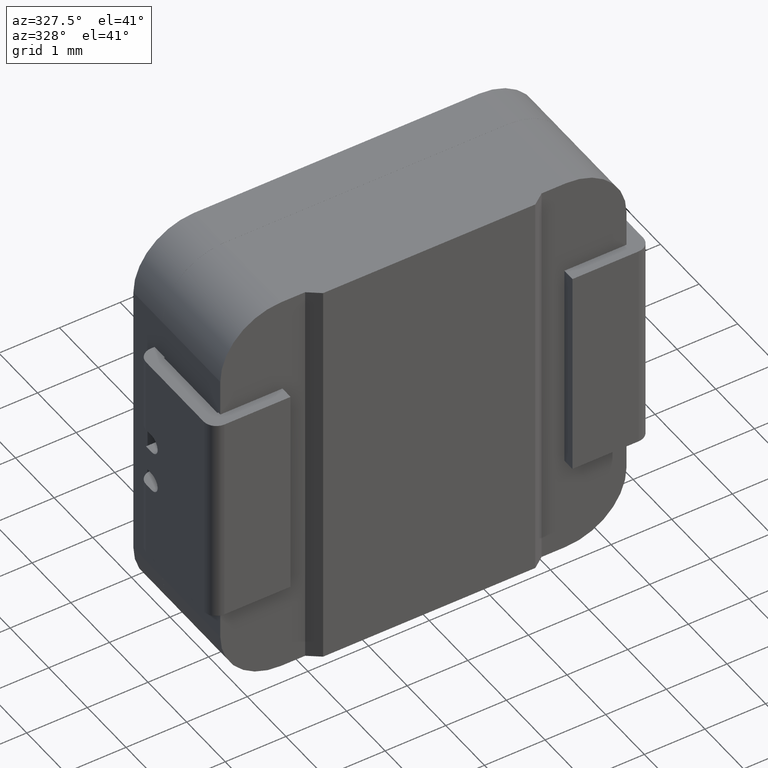
[diagram: clean part render]
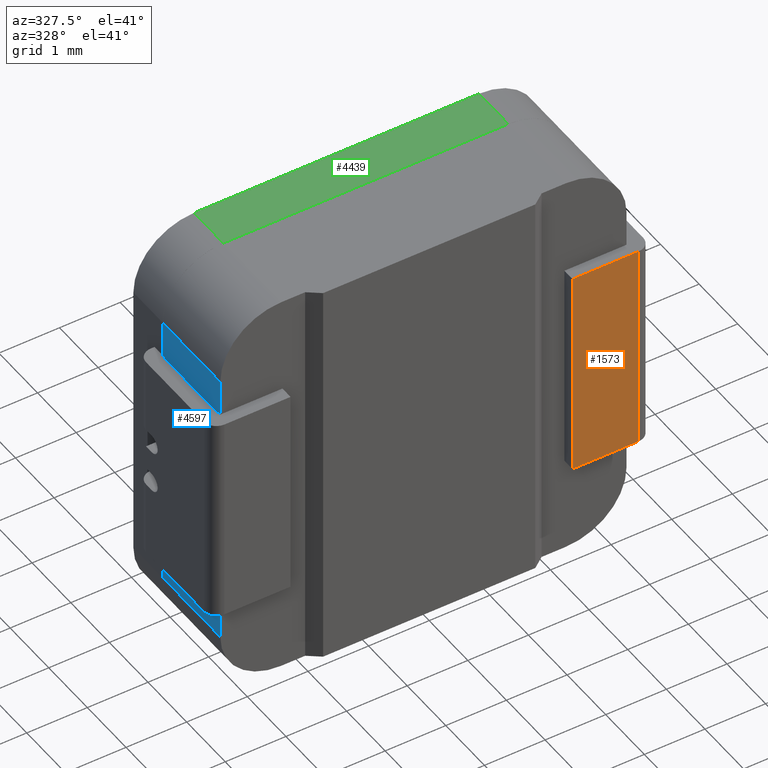
[diagram: same view with three faces highlighted in distinct colors, each labeled with its STEP entity id]
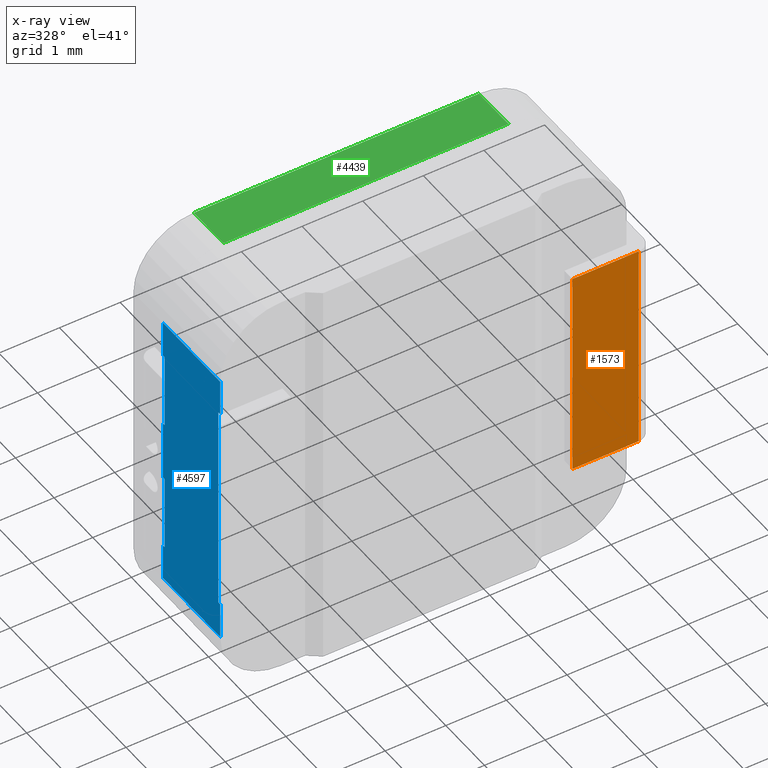
[diagram: x-ray of the same camera — body ghosted, the three highlighted faces saturated]
A machine part, auxiliary view with three faces highlighted in distinct colors.
The next image is the same camera in x-ray (body ghosted, the three faces saturated) — at least one of them is partly hidden behind the body in this view.
Their STEP definitions:

[orange] entity #1573 — the highlighted planar face has unit normal (0, -1, 0).
#205 = EDGE_CURVE ( 'NONE', #3668, #892, #1800, .T. ) ;
#381 = AXIS2_PLACEMENT_3D ( 'NONE', #4107, #1041, #2558 ) ;
#568 = PLANE ( 'NONE',  #381 ) ;
#762 = VECTOR ( 'NONE', #6753, 1000.000000000000000 ) ;
#892 = VERTEX_POINT ( 'NONE', #4506 ) ;
#1009 = CARTESIAN_POINT ( 'NONE',  ( 3.625000000000001776, -0.06000000000000029615, 1.750000000000000000 ) ) ;
#1041 = DIRECTION ( 'NONE',  ( 2.293504595642413567E-16, -1.000000000000000000, 0.0000000000000000000 ) ) ;
#1153 = VECTOR ( 'NONE', #1237, 1000.000000000000000 ) ;
#1237 = DIRECTION ( 'NONE',  ( -0.0000000000000000000, -0.0000000000000000000, 1.000000000000000000 ) ) ;
#1573 = ADVANCED_FACE ( 'NONE', ( #3455 ), #568, .T. ) ;
#1711 = VECTOR ( 'NONE', #4633, 1000.000000000000000 ) ;
#1800 = LINE ( 'NONE', #4420, #1153 ) ;
#2169 = ORIENTED_EDGE ( 'NONE', *, *, #205, .T. ) ;
#2204 = EDGE_LOOP ( 'NONE', ( #3092, #2169, #3933, #4871 ) ) ;
#2558 = DIRECTION ( 'NONE',  ( 1.000000000000000000, 2.293504595642413567E-16, 0.0000000000000000000 ) ) ;
#2808 = CARTESIAN_POINT ( 'NONE',  ( 3.415000000000001812, -0.06000000000000033779, -1.750000000000000000 ) ) ;
#2826 = VERTEX_POINT ( 'NONE', #5408 ) ;
#3092 = ORIENTED_EDGE ( 'NONE', *, *, #4864, .F. ) ;
#3124 = LINE ( 'NONE', #6203, #3691 ) ;
#3455 = FACE_OUTER_BOUND ( 'NONE', #2204, .T. ) ;
#3533 = LINE ( 'NONE', #3605, #762 ) ;
#3605 = CARTESIAN_POINT ( 'NONE',  ( 2.325000000000001954, -0.06000000000000059452, 1.750000000000000000 ) ) ;
#3668 = VERTEX_POINT ( 'NONE', #2808 ) ;
#3691 = VECTOR ( 'NONE', #4648, 1000.000000000000000 ) ;
#3933 = ORIENTED_EDGE ( 'NONE', *, *, #5157, .T. ) ;
#4107 = CARTESIAN_POINT ( 'NONE',  ( 3.625000000000001776, -0.06000000000000029615, 1.750000000000000000 ) ) ;
#4420 = CARTESIAN_POINT ( 'NONE',  ( 3.415000000000001812, -0.06000000000000033779, 1.750000000000000000 ) ) ;
#4506 = CARTESIAN_POINT ( 'NONE',  ( 3.415000000000001812, -0.06000000000000033779, 1.750000000000000000 ) ) ;
#4633 = DIRECTION ( 'NONE',  ( -1.000000000000000000, -2.293504595642413567E-16, 0.0000000000000000000 ) ) ;
#4648 = DIRECTION ( 'NONE',  ( -1.000000000000000000, -2.293504595642413567E-16, 0.0000000000000000000 ) ) ;
#4772 = EDGE_CURVE ( 'NONE', #6376, #2826, #3533, .T. ) ;
#4864 = EDGE_CURVE ( 'NONE', #3668, #2826, #3124, .T. ) ;
#4871 = ORIENTED_EDGE ( 'NONE', *, *, #4772, .T. ) ;
#5157 = EDGE_CURVE ( 'NONE', #892, #6376, #5881, .T. ) ;
#5408 = CARTESIAN_POINT ( 'NONE',  ( 2.325000000000001954, -0.06000000000000059452, -1.750000000000000000 ) ) ;
#5881 = LINE ( 'NONE', #1009, #1711 ) ;
#6203 = CARTESIAN_POINT ( 'NONE',  ( 3.625000000000001776, -0.06000000000000029615, -1.750000000000000000 ) ) ;
#6376 = VERTEX_POINT ( 'NONE', #6621 ) ;
#6621 = CARTESIAN_POINT ( 'NONE',  ( 2.325000000000001954, -0.06000000000000059452, 1.750000000000000000 ) ) ;
#6753 = DIRECTION ( 'NONE',  ( -0.0000000000000000000, -0.0000000000000000000, -1.000000000000000000 ) ) ;

[blue] entity #4597 — the highlighted planar face has unit normal (1, 0, 0).
#13 = CARTESIAN_POINT ( 'NONE',  ( -3.350000000000000089, 2.399999999999999911, -1.750000000000000000 ) ) ;
#145 = CARTESIAN_POINT ( 'NONE',  ( -3.350000000000000089, 1.589999999999999858, -3.349999999999999645 ) ) ;
#149 = VECTOR ( 'NONE', #4737, 1000.000000000000000 ) ;
#248 = DIRECTION ( 'NONE',  ( 1.000000000000000000, 0.0000000000000000000, 0.0000000000000000000 ) ) ;
#251 = VERTEX_POINT ( 'NONE', #3379 ) ;
#413 = VERTEX_POINT ( 'NONE', #2626 ) ;
#489 = EDGE_CURVE ( 'NONE', #3295, #3349, #5089, .T. ) ;
#494 = CARTESIAN_POINT ( 'NONE',  ( -3.350000000000000089, 0.1499999999999999944, -3.350000000000001421 ) ) ;
#497 = CARTESIAN_POINT ( 'NONE',  ( -3.350000000000000089, 0.1999999999999996503, -1.750000000000000000 ) ) ;
#587 = DIRECTION ( 'NONE',  ( 0.0000000000000000000, 0.0000000000000000000, 1.000000000000000000 ) ) ;
#755 = ORIENTED_EDGE ( 'NONE', *, *, #3972, .T. ) ;
#807 = DIRECTION ( 'NONE',  ( 0.0000000000000000000, -1.000000000000000000, -0.0000000000000000000 ) ) ;
#897 = VERTEX_POINT ( 'NONE', #4481 ) ;
#923 = ORIENTED_EDGE ( 'NONE', *, *, #3638, .T. ) ;
#987 = LINE ( 'NONE', #5781, #1389 ) ;
#993 = ORIENTED_EDGE ( 'NONE', *, *, #1533, .F. ) ;
#997 = DIRECTION ( 'NONE',  ( 0.0000000000000000000, 0.0000000000000000000, -1.000000000000000000 ) ) ;
#1002 = ORIENTED_EDGE ( 'NONE', *, *, #2024, .F. ) ;
#1091 = CARTESIAN_POINT ( 'NONE',  ( -3.350000000000000089, 0.1999999999999996503, -3.349999999999999645 ) ) ;
#1138 = CARTESIAN_POINT ( 'NONE',  ( -3.350000000000000089, 0.1499999999999999944, -3.350000000000001421 ) ) ;
#1166 = LINE ( 'NONE', #6008, #3616 ) ;
#1187 = ORIENTED_EDGE ( 'NONE', *, *, #489, .T. ) ;
#1254 = VERTEX_POINT ( 'NONE', #3273 ) ;
#1299 = ORIENTED_EDGE ( 'NONE', *, *, #5424, .F. ) ;
#1389 = VECTOR ( 'NONE', #5205, 1000.000000000000000 ) ;
#1423 = ORIENTED_EDGE ( 'NONE', *, *, #3394, .T. ) ;
#1449 = VERTEX_POINT ( 'NONE', #1947 ) ;
#1470 = CARTESIAN_POINT ( 'NONE',  ( -3.350000000000000089, 2.399999999999999911, 1.749999999999999778 ) ) ;
#1527 = CARTESIAN_POINT ( 'NONE',  ( -3.350000000000000089, 1.639999999999999902, -3.349999999999999645 ) ) ;
#1533 = EDGE_CURVE ( 'NONE', #2645, #5557, #2493, .T. ) ;
#1731 = VERTEX_POINT ( 'NONE', #497 ) ;
#1746 = EDGE_CURVE ( 'NONE', #251, #1731, #6689, .T. ) ;
#1774 = VECTOR ( 'NONE', #6310, 1000.000000000000000 ) ;
#1777 = DIRECTION ( 'NONE',  ( 0.0000000000000000000, 0.0000000000000000000, 1.000000000000000000 ) ) ;
#1806 = VECTOR ( 'NONE', #3284, 1000.000000000000000 ) ;
#1836 = EDGE_CURVE ( 'NONE', #3453, #251, #2774, .T. ) ;
#1865 = CARTESIAN_POINT ( 'NONE',  ( -3.350000000000000089, 1.639999999999999902, 0.5000000000000000000 ) ) ;
#1924 = DIRECTION ( 'NONE',  ( 0.0000000000000000000, -0.0000000000000000000, 1.000000000000000000 ) ) ;
#1947 = CARTESIAN_POINT ( 'NONE',  ( -3.350000000000000089, 1.639999999999999902, -2.349999999999999645 ) ) ;
#2024 = EDGE_CURVE ( 'NONE', #413, #3349, #3493, .T. ) ;
#2138 = VECTOR ( 'NONE', #807, 1000.000000000000000 ) ;
#2142 = LINE ( 'NONE', #494, #2963 ) ;
#2190 = EDGE_CURVE ( 'NONE', #1254, #3875, #3654, .T. ) ;
#2219 = LINE ( 'NONE', #4005, #2792 ) ;
#2493 = LINE ( 'NONE', #1470, #5085 ) ;
#2517 = DIRECTION ( 'NONE',  ( -0.0000000000000000000, 1.000000000000000000, 0.0000000000000000000 ) ) ;
#2626 = CARTESIAN_POINT ( 'NONE',  ( -3.350000000000000089, 1.639999999999999902, -0.5000000000000000000 ) ) ;
#2645 = VERTEX_POINT ( 'NONE', #5296 ) ;
#2681 = ORIENTED_EDGE ( 'NONE', *, *, #3811, .T. ) ;
#2684 = VECTOR ( 'NONE', #3928, 1000.000000000000000 ) ;
#2729 = ORIENTED_EDGE ( 'NONE', *, *, #3575, .T. ) ;
#2773 = EDGE_CURVE ( 'NONE', #1254, #6768, #3952, .T. ) ;
#2774 = LINE ( 'NONE', #3717, #149 ) ;
#2792 = VECTOR ( 'NONE', #2517, 1000.000000000000000 ) ;
#2822 = CARTESIAN_POINT ( 'NONE',  ( -3.350000000000000089, 1.639999999999999902, 2.349999999999999645 ) ) ;
#2846 = LINE ( 'NONE', #3708, #4056 ) ;
#2963 = VECTOR ( 'NONE', #4126, 1000.000000000000000 ) ;
#3051 = CARTESIAN_POINT ( 'NONE',  ( -3.350000000000000089, 1.589999999999999858, -0.5000000000000000000 ) ) ;
#3273 = CARTESIAN_POINT ( 'NONE',  ( -3.350000000000000089, 1.589999999999999858, -1.750000000000000000 ) ) ;
#3284 = DIRECTION ( 'NONE',  ( -0.0000000000000000000, -0.0000000000000000000, 1.000000000000000000 ) ) ;
#3291 = ORIENTED_EDGE ( 'NONE', *, *, #1746, .F. ) ;
#3295 = VERTEX_POINT ( 'NONE', #4808 ) ;
#3320 = CARTESIAN_POINT ( 'NONE',  ( -3.350000000000000089, 2.399999999999999911, -2.349999999999999645 ) ) ;
#3326 = CARTESIAN_POINT ( 'NONE',  ( -3.350000000000000089, 2.399999999999999911, 0.5000000000000000000 ) ) ;
#3349 = VERTEX_POINT ( 'NONE', #1865 ) ;
#3379 = CARTESIAN_POINT ( 'NONE',  ( -3.350000000000000089, 0.1999999999999996780, 1.750000000000000000 ) ) ;
#3394 = EDGE_CURVE ( 'NONE', #413, #6768, #1166, .T. ) ;
#3428 = CARTESIAN_POINT ( 'NONE',  ( -3.350000000000000089, 1.639999999999999902, -3.349999999999999645 ) ) ;
#3453 = VERTEX_POINT ( 'NONE', #3998 ) ;
#3493 = LINE ( 'NONE', #3428, #2684 ) ;
#3504 = EDGE_CURVE ( 'NONE', #897, #4624, #2142, .T. ) ;
#3575 = EDGE_CURVE ( 'NONE', #3453, #5499, #4807, .T. ) ;
#3593 = EDGE_LOOP ( 'NONE', ( #5142, #2729, #923, #3606, #993, #4331, #1187, #1002, #1423, #4863, #5573, #1299, #2681, #4579, #755, #3291 ) ) ;
#3606 = ORIENTED_EDGE ( 'NONE', *, *, #5161, .F. ) ;
#3616 = VECTOR ( 'NONE', #6524, 1000.000000000000000 ) ;
#3638 = EDGE_CURVE ( 'NONE', #5499, #3864, #987, .T. ) ;
#3654 = LINE ( 'NONE', #13, #1774 ) ;
#3667 = VECTOR ( 'NONE', #1924, 1000.000000000000000 ) ;
#3708 = CARTESIAN_POINT ( 'NONE',  ( -3.350000000000000089, 1.589999999999999858, -3.349999999999999645 ) ) ;
#3717 = CARTESIAN_POINT ( 'NONE',  ( -3.350000000000000089, 2.399999999999999911, 1.749999999999999778 ) ) ;
#3811 = EDGE_CURVE ( 'NONE', #1449, #897, #5307, .T. ) ;
#3864 = VERTEX_POINT ( 'NONE', #2822 ) ;
#3875 = VERTEX_POINT ( 'NONE', #4433 ) ;
#3928 = DIRECTION ( 'NONE',  ( 0.0000000000000000000, -0.0000000000000000000, 1.000000000000000000 ) ) ;
#3937 = CARTESIAN_POINT ( 'NONE',  ( -3.350000000000000089, 2.399999999999999911, -3.349999999999999645 ) ) ;
#3952 = LINE ( 'NONE', #145, #6348 ) ;
#3972 = EDGE_CURVE ( 'NONE', #4624, #1731, #2219, .T. ) ;
#3998 = CARTESIAN_POINT ( 'NONE',  ( -3.350000000000000089, 0.1499999999999999667, 1.749999999999999778 ) ) ;
#4005 = CARTESIAN_POINT ( 'NONE',  ( -3.350000000000000089, 2.399999999999999911, -1.750000000000000000 ) ) ;
#4056 = VECTOR ( 'NONE', #587, 1000.000000000000000 ) ;
#4126 = DIRECTION ( 'NONE',  ( -0.0000000000000000000, -0.0000000000000000000, 1.000000000000000000 ) ) ;
#4331 = ORIENTED_EDGE ( 'NONE', *, *, #4390, .F. ) ;
#4384 = CARTESIAN_POINT ( 'NONE',  ( -3.350000000000000089, 0.1499999999999999667, -1.750000000000000000 ) ) ;
#4390 = EDGE_CURVE ( 'NONE', #3295, #2645, #2846, .T. ) ;
#4416 = FACE_OUTER_BOUND ( 'NONE', #3593, .T. ) ;
#4433 = CARTESIAN_POINT ( 'NONE',  ( -3.350000000000000089, 1.639999999999999902, -1.750000000000000000 ) ) ;
#4481 = CARTESIAN_POINT ( 'NONE',  ( -3.350000000000000089, 0.1499999999999999944, -2.350000000000000089 ) ) ;
#4508 = AXIS2_PLACEMENT_3D ( 'NONE', #3937, #248, #4939 ) ;
#4579 = ORIENTED_EDGE ( 'NONE', *, *, #3504, .T. ) ;
#4597 = ADVANCED_FACE ( 'NONE', ( #4416 ), #5452, .F. ) ;
#4624 = VERTEX_POINT ( 'NONE', #4384 ) ;
#4737 = DIRECTION ( 'NONE',  ( -0.0000000000000000000, 1.000000000000000000, 0.0000000000000000000 ) ) ;
#4750 = VECTOR ( 'NONE', #4800, 1000.000000000000000 ) ;
#4800 = DIRECTION ( 'NONE',  ( -0.0000000000000000000, 1.000000000000000000, 0.0000000000000000000 ) ) ;
#4807 = LINE ( 'NONE', #1138, #1806 ) ;
#4808 = CARTESIAN_POINT ( 'NONE',  ( -3.350000000000000089, 1.589999999999999858, 0.5000000000000000000 ) ) ;
#4863 = ORIENTED_EDGE ( 'NONE', *, *, #2773, .F. ) ;
#4939 = DIRECTION ( 'NONE',  ( 0.0000000000000000000, 0.0000000000000000000, -1.000000000000000000 ) ) ;
#4999 = CARTESIAN_POINT ( 'NONE',  ( -3.350000000000000089, 0.1499999999999999944, 2.349999999999997868 ) ) ;
#5085 = VECTOR ( 'NONE', #5648, 1000.000000000000000 ) ;
#5089 = LINE ( 'NONE', #3326, #4750 ) ;
#5142 = ORIENTED_EDGE ( 'NONE', *, *, #1836, .F. ) ;
#5161 = EDGE_CURVE ( 'NONE', #5557, #3864, #5713, .T. ) ;
#5205 = DIRECTION ( 'NONE',  ( -0.0000000000000000000, 1.000000000000000000, -0.0000000000000000000 ) ) ;
#5296 = CARTESIAN_POINT ( 'NONE',  ( -3.350000000000000089, 1.589999999999999858, 1.750000000000000000 ) ) ;
#5307 = LINE ( 'NONE', #3320, #2138 ) ;
#5424 = EDGE_CURVE ( 'NONE', #1449, #3875, #5704, .T. ) ;
#5452 = PLANE ( 'NONE',  #4508 ) ;
#5499 = VERTEX_POINT ( 'NONE', #4999 ) ;
#5557 = VERTEX_POINT ( 'NONE', #6592 ) ;
#5573 = ORIENTED_EDGE ( 'NONE', *, *, #2190, .T. ) ;
#5648 = DIRECTION ( 'NONE',  ( -0.0000000000000000000, 1.000000000000000000, 0.0000000000000000000 ) ) ;
#5701 = DIRECTION ( 'NONE',  ( 0.0000000000000000000, -0.0000000000000000000, 1.000000000000000000 ) ) ;
#5704 = LINE ( 'NONE', #6014, #3667 ) ;
#5713 = LINE ( 'NONE', #1527, #6379 ) ;
#5781 = CARTESIAN_POINT ( 'NONE',  ( -3.350000000000000089, 2.399999999999999911, 2.349999999999999645 ) ) ;
#6008 = CARTESIAN_POINT ( 'NONE',  ( -3.350000000000000089, 2.399999999999999911, -0.5000000000000000000 ) ) ;
#6014 = CARTESIAN_POINT ( 'NONE',  ( -3.350000000000000089, 1.639999999999999902, -3.349999999999999645 ) ) ;
#6310 = DIRECTION ( 'NONE',  ( -0.0000000000000000000, 1.000000000000000000, 0.0000000000000000000 ) ) ;
#6348 = VECTOR ( 'NONE', #1777, 1000.000000000000000 ) ;
#6379 = VECTOR ( 'NONE', #5701, 1000.000000000000000 ) ;
#6524 = DIRECTION ( 'NONE',  ( 0.0000000000000000000, -1.000000000000000000, 0.0000000000000000000 ) ) ;
#6525 = VECTOR ( 'NONE', #997, 1000.000000000000000 ) ;
#6592 = CARTESIAN_POINT ( 'NONE',  ( -3.350000000000000089, 1.639999999999999902, 1.749999999999999778 ) ) ;
#6689 = LINE ( 'NONE', #1091, #6525 ) ;
#6768 = VERTEX_POINT ( 'NONE', #3051 ) ;

[green] entity #4439 — the highlighted planar face has unit normal (-0, 0, -1).
#135 = ORIENTED_EDGE ( 'NONE', *, *, #2728, .T. ) ;
#694 = CARTESIAN_POINT ( 'NONE',  ( -2.350000000000000089, 1.640999999999999792, 3.349999999999999645 ) ) ;
#706 = ORIENTED_EDGE ( 'NONE', *, *, #2285, .F. ) ;
#724 = DIRECTION ( 'NONE',  ( -1.294569758191646169E-16, 0.0000000000000000000, -1.000000000000000000 ) ) ;
#1038 = VECTOR ( 'NONE', #3445, 1000.000000000000000 ) ;
#1160 = CARTESIAN_POINT ( 'NONE',  ( -3.350000000000000089, 1.640999999999999792, 3.349999999999999645 ) ) ;
#1687 = PLANE ( 'NONE',  #4992 ) ;
#1799 = DIRECTION ( 'NONE',  ( 0.0000000000000000000, -1.000000000000000000, 0.0000000000000000000 ) ) ;
#1912 = VECTOR ( 'NONE', #5334, 1000.000000000000000 ) ;
#1955 = LINE ( 'NONE', #5938, #1038 ) ;
#2158 = DIRECTION ( 'NONE',  ( -0.0000000000000000000, 1.000000000000000000, -0.0000000000000000000 ) ) ;
#2214 = VERTEX_POINT ( 'NONE', #694 ) ;
#2285 = EDGE_CURVE ( 'NONE', #2530, #4613, #1955, .T. ) ;
#2357 = CARTESIAN_POINT ( 'NONE',  ( 2.350000000000003642, 1.640999999999999792, 3.349999999999998757 ) ) ;
#2530 = VERTEX_POINT ( 'NONE', #3652 ) ;
#2566 = FACE_OUTER_BOUND ( 'NONE', #6772, .T. ) ;
#2618 = ORIENTED_EDGE ( 'NONE', *, *, #3159, .T. ) ;
#2728 = EDGE_CURVE ( 'NONE', #3298, #4613, #5846, .T. ) ;
#2806 = DIRECTION ( 'NONE',  ( -1.000000000000000000, 0.0000000000000000000, 1.294569758191646169E-16 ) ) ;
#2868 = LINE ( 'NONE', #5969, #5957 ) ;
#3016 = ORIENTED_EDGE ( 'NONE', *, *, #5325, .T. ) ;
#3159 = EDGE_CURVE ( 'NONE', #2214, #3298, #5910, .T. ) ;
#3298 = VERTEX_POINT ( 'NONE', #2357 ) ;
#3304 = CARTESIAN_POINT ( 'NONE',  ( -3.350000000000000089, 2.399999999999999911, 3.349999999999999645 ) ) ;
#3445 = DIRECTION ( 'NONE',  ( 1.000000000000000000, 0.0000000000000000000, -1.294569758191646169E-16 ) ) ;
#3476 = CARTESIAN_POINT ( 'NONE',  ( 2.350000000000003642, 2.399999999999999911, 3.349999999999998757 ) ) ;
#3652 = CARTESIAN_POINT ( 'NONE',  ( -2.350000000000000089, 2.399999999999999911, 3.349999999999999645 ) ) ;
#3876 = VECTOR ( 'NONE', #2158, 1000.000000000000000 ) ;
#4439 = ADVANCED_FACE ( 'NONE', ( #2566 ), #1687, .F. ) ;
#4613 = VERTEX_POINT ( 'NONE', #3476 ) ;
#4679 = CARTESIAN_POINT ( 'NONE',  ( 2.350000000000003642, 2.399999999999999911, 3.349999999999998757 ) ) ;
#4992 = AXIS2_PLACEMENT_3D ( 'NONE', #3304, #724, #2806 ) ;
#5325 = EDGE_CURVE ( 'NONE', #2530, #2214, #2868, .T. ) ;
#5334 = DIRECTION ( 'NONE',  ( 1.000000000000000000, 0.0000000000000000000, -1.294569758191646169E-16 ) ) ;
#5846 = LINE ( 'NONE', #4679, #3876 ) ;
#5910 = LINE ( 'NONE', #1160, #1912 ) ;
#5938 = CARTESIAN_POINT ( 'NONE',  ( -3.350000000000000089, 2.399999999999999911, 3.349999999999999645 ) ) ;
#5957 = VECTOR ( 'NONE', #1799, 1000.000000000000000 ) ;
#5969 = CARTESIAN_POINT ( 'NONE',  ( -2.350000000000000089, 2.399999999999999911, 3.349999999999999645 ) ) ;
#6772 = EDGE_LOOP ( 'NONE', ( #706, #3016, #2618, #135 ) ) ;